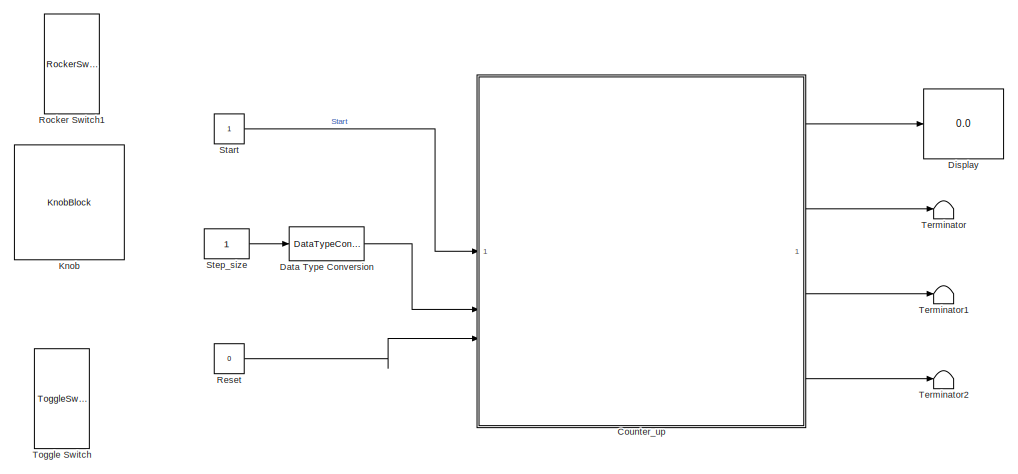
[diagram: root canvas - part 1/2, left side, full height]
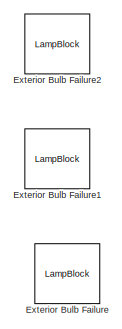
[diagram: root canvas - part 2/2, middle right region]
MODEL slx_5a6fc8e8a82f
KIND model
CONFIG AbsTol = auto
CONFIG EnableMultiTasking = off
CONFIG FixedStep = 1
CONFIG MaxStep = auto
CONFIG MinStep = auto
CONFIG RelTol = 1e-3
CONFIG SampleTimeConstraint = Unconstrained
CONFIG SolverName = FixedStepAuto
CONFIG StartTime = 0.0
CONFIG StopTime = inf
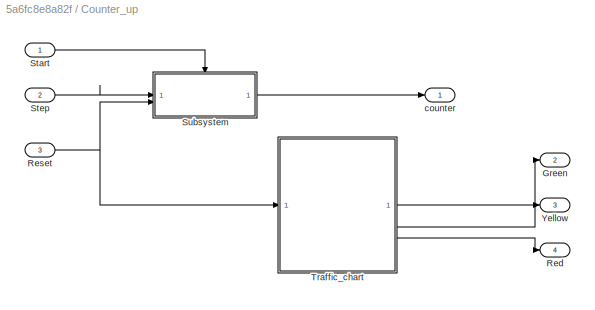
BLOCK [SubSystem] Counter_up
BLOCK [Outport] Counter_up/Green
  Port = 2
BLOCK [Outport] Counter_up/Red
  NameLocation = left
  Port = 4
BLOCK [Inport] Counter_up/Reset
  Port = 3
BLOCK [Inport] Counter_up/Start
BLOCK [Inport] Counter_up/Step
  Port = 2
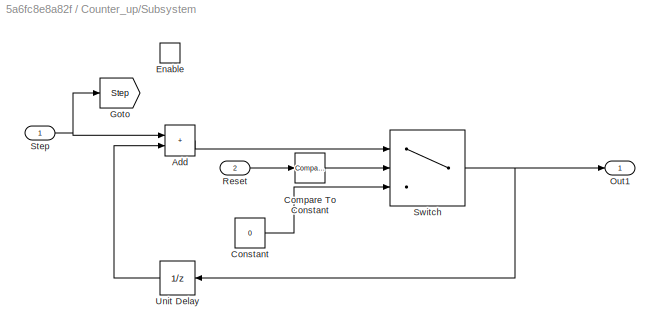
BLOCK [SubSystem] Counter_up/Subsystem
BLOCK [Sum] Counter_up/Subsystem/Add
  IconShape = rectangular
BLOCK [Reference] Counter_up/Subsystem/Compare To Constant  REF=simulink/Logic and Bit
Operations/Compare
To Constant
  SourceBlock = simulink/Logic and Bit\nOperations/Compare\nTo Constant
  SourceType = Compare To Constant
BLOCK [Constant] Counter_up/Subsystem/Constant
  Value = 0
BLOCK [EnablePort] Counter_up/Subsystem/Enable
BLOCK [Goto] Counter_up/Subsystem/Goto
  GotoTag = Step
BLOCK [Outport] Counter_up/Subsystem/Out1
BLOCK [Inport] Counter_up/Subsystem/Reset
  Port = 2
BLOCK [Inport] Counter_up/Subsystem/Step
BLOCK [Switch] Counter_up/Subsystem/Switch
  InputSameDT = off
  SaturateOnIntegerOverflow = off
BLOCK [UnitDelay] Counter_up/Subsystem/Unit Delay
  HasFrameUpgradeWarning = on
  NameLocation = top
  SampleTime = -1
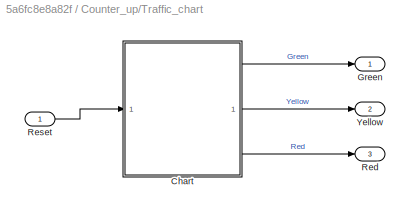
BLOCK [SubSystem] Counter_up/Traffic_chart
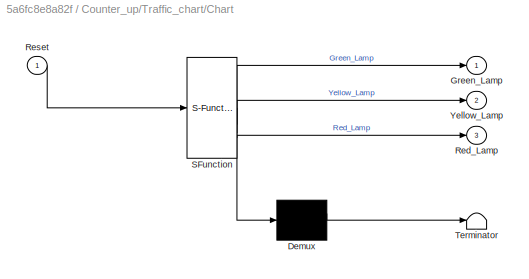
BLOCK [SubSystem] Counter_up/Traffic_chart/Chart
  ErrorFcn = Stateflow.Translate.translate
  PermitHierarchicalResolution = ExplicitOnly
  SFBlockType = Chart
  TreatAsAtomicUnit = on
BLOCK [Demux] Counter_up/Traffic_chart/Chart/ Demux 
  Outputs = 1
BLOCK [S-Function] Counter_up/Traffic_chart/Chart/ SFunction 
  EnableBusSupport = on
  FunctionName = sf_sfun
  PortCounts = [1 4]
  SFcnIsStateOwnerBlock = off
  SFunctionDeploymentMode = off
  Tag = Stateflow S-Function 3
BLOCK [Terminator] Counter_up/Traffic_chart/Chart/ Terminator 
BLOCK [Outport] Counter_up/Traffic_chart/Chart/Green_Lamp
BLOCK [Outport] Counter_up/Traffic_chart/Chart/Red_Lamp
  Port = 3
BLOCK [Inport] Counter_up/Traffic_chart/Chart/Reset
BLOCK [Outport] Counter_up/Traffic_chart/Chart/Yellow_Lamp
  Port = 2
BLOCK [Outport] Counter_up/Traffic_chart/Green
BLOCK [Outport] Counter_up/Traffic_chart/Red
  Port = 3
BLOCK [Inport] Counter_up/Traffic_chart/Reset
BLOCK [Outport] Counter_up/Traffic_chart/Yellow
  Port = 2
BLOCK [Outport] Counter_up/Yellow
  Port = 3
BLOCK [Outport] Counter_up/counter
BLOCK [DataTypeConversion] Data Type Conversion
  OutDataTypeStr = uint8
  RndMeth = Floor
  SaturateOnIntegerOverflow = off
BLOCK [Display] Display
  Decimation = 1
BLOCK [LampBlock] Exterior Bulb Failure
  Icon = ExteriorBulbFailure
BLOCK [LampBlock] Exterior Bulb Failure1
  Icon = ExteriorBulbFailure
BLOCK [LampBlock] Exterior Bulb Failure2
  Icon = ExteriorBulbFailure
BLOCK [KnobBlock] Knob
  ScaleMax = 8
  TickInterval = 1
BLOCK [Constant] Reset
  Value = 0
BLOCK [RockerSwitchBlock] Rocker Switch1
BLOCK [Constant] Start
  OutDataTypeStr = boolean
BLOCK [Constant] Step_size
  OutDataTypeStr = int8
BLOCK [Terminator] Terminator
BLOCK [Terminator] Terminator1
BLOCK [Terminator] Terminator2
BLOCK [ToggleSwitchBlock] Toggle Switch
NET Counter_up/Reset:1 -> Counter_up/Subsystem:2, Counter_up/Traffic_chart:1
LINE Counter_up/Start:1 -> Counter_up/Subsystem:enable
LINE Counter_up/Step:1 -> Counter_up/Subsystem:1
LINE Counter_up/Subsystem/Add:1 -> Counter_up/Subsystem/Switch:1
LINE Counter_up/Subsystem/Compare To Constant:1 -> Counter_up/Subsystem/Switch:2
LINE Counter_up/Subsystem/Constant:1 -> Counter_up/Subsystem/Switch:3
LINE Counter_up/Subsystem/Reset:1 -> Counter_up/Subsystem/Compare To Constant:1
NET Counter_up/Subsystem/Step:1 -> Counter_up/Subsystem/Add:1, Counter_up/Subsystem/Goto:1
NET Counter_up/Subsystem/Switch:1 -> Counter_up/Subsystem/Out1:1, Counter_up/Subsystem/Unit Delay:1
LINE Counter_up/Subsystem/Unit Delay:1 -> Counter_up/Subsystem/Add:2
LINE Counter_up/Subsystem:1 -> Counter_up/counter:1
LINE Counter_up/Traffic_chart/Chart:1 -> Counter_up/Traffic_chart/Green:1
LINE Counter_up/Traffic_chart/Chart:2 -> Counter_up/Traffic_chart/Yellow:1
LINE Counter_up/Traffic_chart/Chart:3 -> Counter_up/Traffic_chart/Red:1
LINE Counter_up/Traffic_chart/Reset:1 -> Counter_up/Traffic_chart/Chart:1
LINE Counter_up/Traffic_chart:1 -> Counter_up/Green:1
LINE Counter_up/Traffic_chart:2 -> Counter_up/Yellow:1
LINE Counter_up/Traffic_chart:3 -> Counter_up/Red:1
LINE Counter_up:1 -> Display:1
LINE Counter_up:2 -> Terminator:1
LINE Counter_up:3 -> Terminator1:1
LINE Counter_up:4 -> Terminator2:1
LINE Data Type Conversion:1 -> Counter_up:2
LINE Reset:1 -> Counter_up:3
LINE Start:1 -> Counter_up:1
LINE Step_size:1 -> Data Type Conversion:1
note: NET lines group one-source signal fan-out (src -> all destinations, sorted); 1:1 wires keep LINE
CHART Counter_up/Traffic_chart/Chart states=3 transitions=7
  STATE_LABEL 'Yellow\nen:\nYellow_Lamp=1;\nex:\nYellow_Lamp=0;\nsupport_transtion=1;'
  STATE_LABEL 'Green\nen:\nGreen_Lamp=1;\nex:\nGreen_Lamp=0;\nsupport_transtion=0;\n'
  STATE_LABEL 'Red\nen:\nRed_Lamp=1;\nex:\nRed_Lamp=0;'
CHART  states=0 transitions=0
